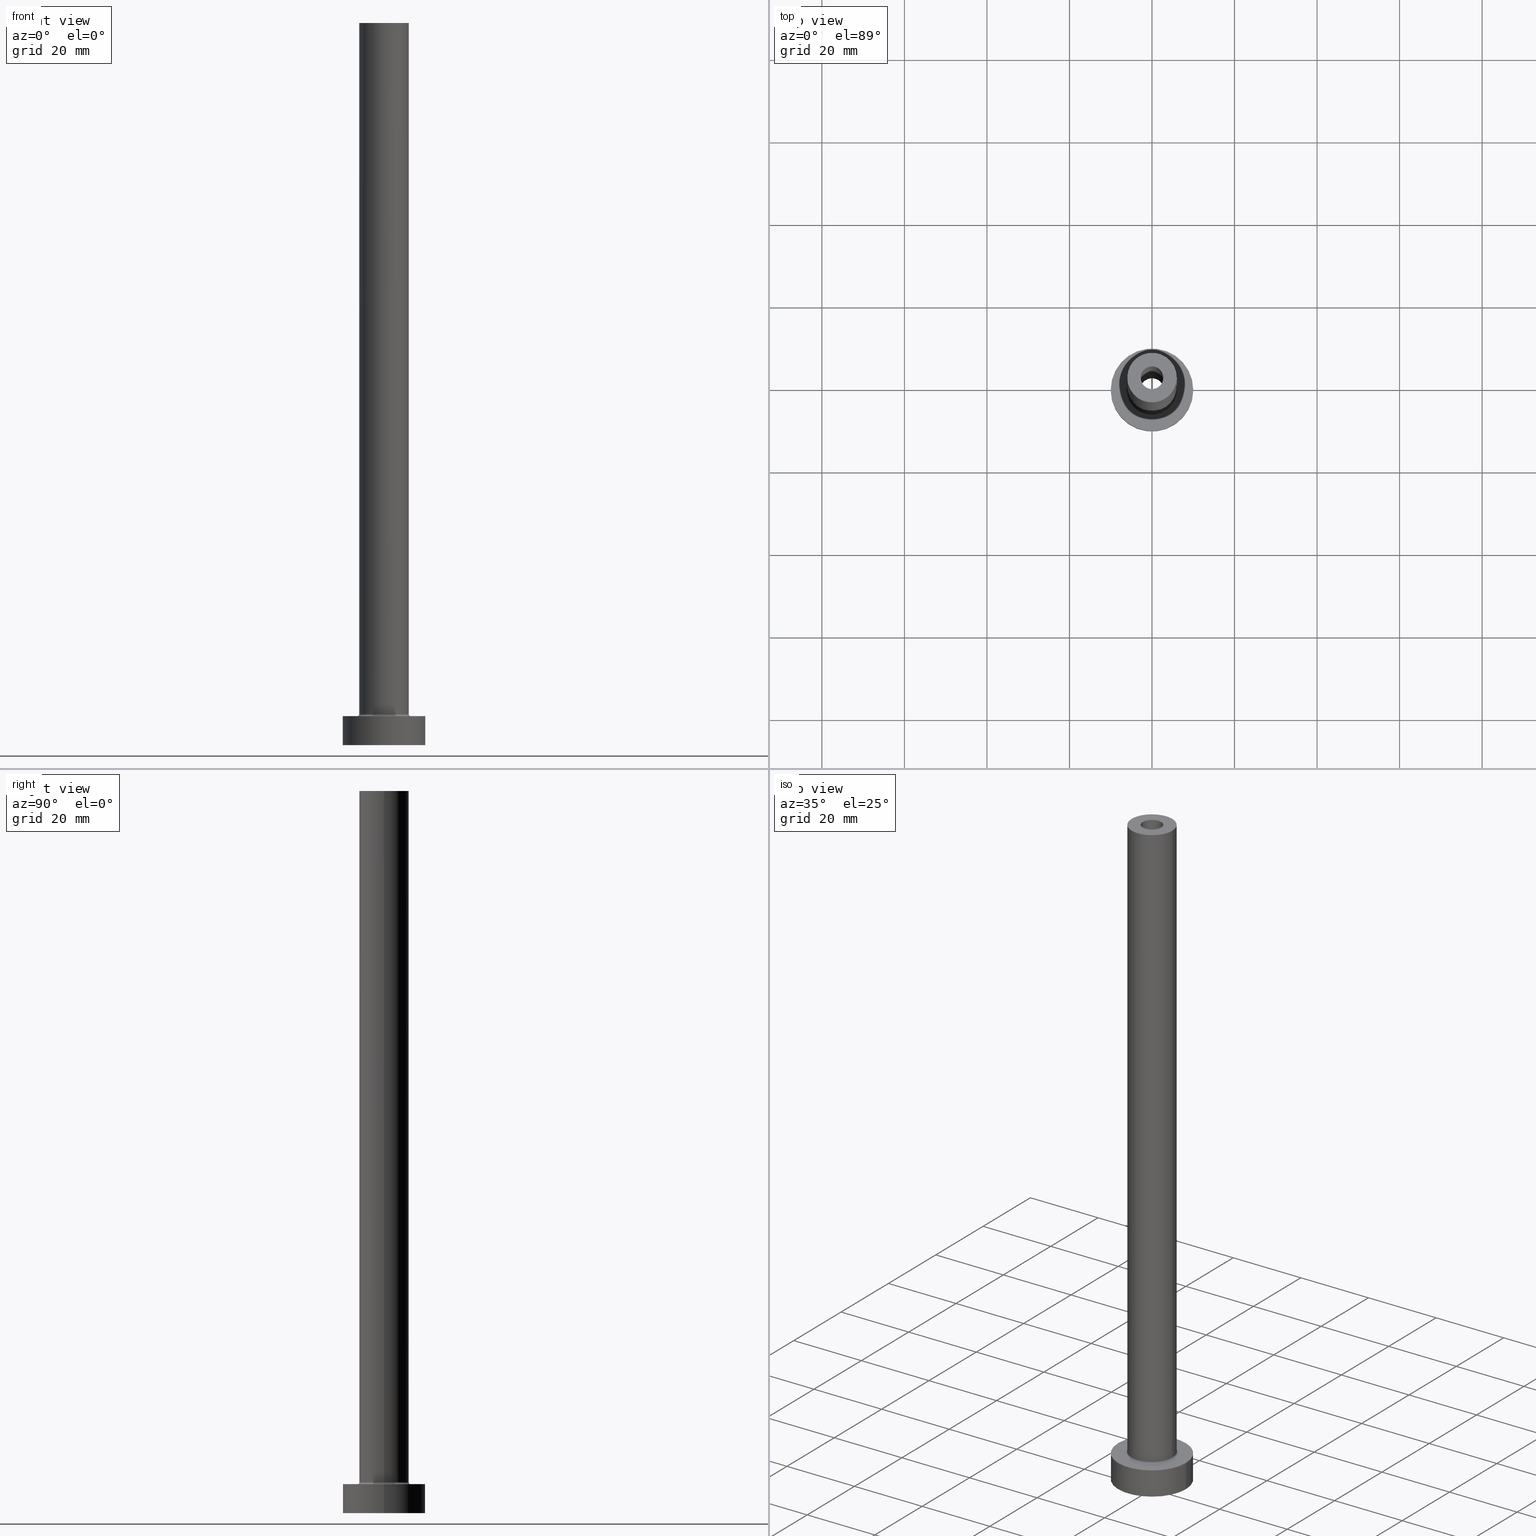
[diagram: canonical four-view strip — front | top / right | iso, engineering-drawing reading convention]
A machine part, canonical four-view strip (front | top / right | iso — engineering-drawing reading convention). The complete STEP part file that produces these views, byte-faithful:
ISO-10303-21;
HEADER;
FILE_DESCRIPTION (( 'STEP AP203' ),
    '1' );
FILE_NAME ('150e.STEP',
    '2023-02-13T15:55:40',
    ( '' ),
    ( '' ),
    'SwSTEP 2.0',
    'SolidWorks 2019',
    '' );
FILE_SCHEMA (( 'CONFIG_CONTROL_DESIGN' ));
ENDSEC;

DATA;
#1 = DIRECTION ( 'NONE',  ( 0.000000000000000000, 0.000000000000000000, 1.000000000000000000 ) ) ;
#2 = DIRECTION ( 'NONE',  ( 1.000000000000000000, 0.000000000000000000, 0.000000000000000000 ) ) ;
#3 = PERSON_AND_ORGANIZATION_ROLE ( 'design_supplier' ) ;
#4 = CARTESIAN_POINT ( 'NONE',  ( 0.000000000000000000, 0.000000000000000000, 175.0000000000000284 ) ) ;
#5 = FACE_OUTER_BOUND ( 'NONE', #341, .T. ) ;
#6 = VECTOR ( 'NONE', #275, 1000.000000000000000 ) ;
#7 = VERTEX_POINT ( 'NONE', #293 ) ;
#8 = CYLINDRICAL_SURFACE ( 'NONE', #185, 6.000000000000000888 ) ;
#9 = ORIENTED_EDGE ( 'NONE', *, *, #28, .T. ) ;
#10 = ORIENTED_EDGE ( 'NONE', *, *, #254, .T. ) ;
#11 = DIRECTION ( 'NONE',  ( 1.000000000000000000, 0.000000000000000000, -0.000000000000000000 ) ) ;
#12 = EDGE_LOOP ( 'NONE', ( #15, #374 ) ) ;
#13 = EDGE_CURVE ( 'NONE', #239, #91, #38, .T. ) ;
#14 = LOCAL_TIME ( 16, 55, 40.00000000000000000, #430 ) ;
#15 = ORIENTED_EDGE ( 'NONE', *, *, #211, .F. ) ;
#16 = APPROVAL_DATE_TIME ( #55, #24 ) ;
#17 = CARTESIAN_POINT ( 'NONE',  ( 10.00000000000000000, 1.224646799147353256E-15, 7.000000000000000000 ) ) ;
#18 = FACE_OUTER_BOUND ( 'NONE', #206, .T. ) ;
#19 = VERTEX_POINT ( 'NONE', #248 ) ;
#20 = APPROVAL ( #427, 'NEUR�EN�' ) ;
#21 = AXIS2_PLACEMENT_3D ( 'NONE', #319, #432, #2 ) ;
#22 = AXIS2_PLACEMENT_3D ( 'NONE', #318, #422, #83 ) ;
#23 = DIRECTION ( 'NONE',  ( 0.000000000000000000, 0.000000000000000000, 1.000000000000000000 ) ) ;
#24 = APPROVAL ( #198, 'NEUR�EN�' ) ;
#25 = ORIENTED_EDGE ( 'NONE', *, *, #115, .T. ) ;
#26 = CARTESIAN_POINT ( 'NONE',  ( 0.000000000000000000, 0.000000000000000000, 7.500000000000007105 ) ) ;
#27 = EDGE_LOOP ( 'NONE', ( #455, #100, #167, #65 ) ) ;
#28 = EDGE_CURVE ( 'NONE', #144, #19, #344, .T. ) ;
#29 = LINE ( 'NONE', #309, #409 ) ;
#30 =( NAMED_UNIT ( * ) PLANE_ANGLE_UNIT ( ) SI_UNIT ( $, .RADIAN. ) );
#31 = DIRECTION ( 'NONE',  ( -0.000000000000000000, -0.000000000000000000, -1.000000000000000000 ) ) ;
#32 = EDGE_CURVE ( 'NONE', #364, #7, #457, .T. ) ;
#33 = PERSON_AND_ORGANIZATION ( #365, #125 ) ;
#34 = EDGE_CURVE ( 'NONE', #438, #400, #429, .T. ) ;
#35 = CARTESIAN_POINT ( 'NONE',  ( 6.500000000000000888, 0.000000000000000000, 7.000000000000002665 ) ) ;
#36 = ORIENTED_EDGE ( 'NONE', *, *, #333, .F. ) ;
#37 = DATE_AND_TIME ( #356, #423 ) ;
#38 = CIRCLE ( 'NONE', #21, 2.899999999999999911 ) ;
#39 = TOROIDAL_SURFACE ( 'NONE', #164, 6.500000000000000888, 0.5000000000000000000 ) ;
#40 = DIRECTION ( 'NONE',  ( 0.000000000000000000, 0.000000000000000000, -1.000000000000000000 ) ) ;
#41 = CARTESIAN_POINT ( 'NONE',  ( 0.000000000000000000, 0.000000000000000000, 0.000000000000000000 ) ) ;
#42 = CC_DESIGN_PERSON_AND_ORGANIZATION_ASSIGNMENT ( #33, #189, ( #393 ) ) ;
#43 = DIRECTION ( 'NONE',  ( 0.000000000000000000, 0.000000000000000000, 1.000000000000000000 ) ) ;
#44 = APPROVAL_ROLE ( '' ) ;
#45 = CARTESIAN_POINT ( 'NONE',  ( -2.750000000000000000, 0.000000000000000000, 175.0000000000000284 ) ) ;
#46 = ORIENTED_EDGE ( 'NONE', *, *, #53, .F. ) ;
#47 = UNCERTAINTY_MEASURE_WITH_UNIT (LENGTH_MEASURE( 1.000000000000000082E-05 ), #361, 'distance_accuracy_value', 'NONE');
#48 = AXIS2_PLACEMENT_3D ( 'NONE', #151, #71, #434 ) ;
#49 = EDGE_LOOP ( 'NONE', ( #389, #231, #96, #316 ) ) ;
#50 = ORIENTED_EDGE ( 'NONE', *, *, #32, .T. ) ;
#51 = EDGE_CURVE ( 'NONE', #239, #364, #29, .T. ) ;
#52 = DIRECTION ( 'NONE',  ( -1.000000000000000000, 0.000000000000000000, 0.000000000000000000 ) ) ;
#53 = EDGE_CURVE ( 'NONE', #400, #165, #214, .T. ) ;
#54 = EDGE_LOOP ( 'NONE', ( #415, #201 ) ) ;
#55 = DATE_AND_TIME ( #369, #137 ) ;
#56 = CARTESIAN_POINT ( 'NONE',  ( 0.000000000000000000, 0.000000000000000000, 175.0000000000000284 ) ) ;
#57 = AXIS2_PLACEMENT_3D ( 'NONE', #371, #204, #66 ) ;
#58 = DIRECTION ( 'NONE',  ( -1.000000000000000000, 0.000000000000000000, 0.000000000000000000 ) ) ;
#59 = ORIENTED_EDGE ( 'NONE', *, *, #426, .F. ) ;
#60 = AXIS2_PLACEMENT_3D ( 'NONE', #460, #72, #145 ) ;
#61 = CIRCLE ( 'NONE', #136, 2.899999999999999911 ) ;
#62 = CIRCLE ( 'NONE', #285, 6.500000000000000888 ) ;
#63 = CARTESIAN_POINT ( 'NONE',  ( -6.000000000000000888, 0.000000000000000000, 7.500000000000007105 ) ) ;
#64 = CARTESIAN_POINT ( 'NONE',  ( 0.000000000000000000, 0.000000000000000000, 138.2024386617639493 ) ) ;
#65 = ORIENTED_EDGE ( 'NONE', *, *, #211, .T. ) ;
#66 = DIRECTION ( 'NONE',  ( -1.000000000000000000, 0.000000000000000000, 0.000000000000000000 ) ) ;
#67 = DIRECTION ( 'NONE',  ( 1.000000000000000000, 0.000000000000000000, 0.000000000000000000 ) ) ;
#68 = AXIS2_PLACEMENT_3D ( 'NONE', #64, #449, #58 ) ;
#69 = DATE_AND_TIME ( #252, #14 ) ;
#70 = DATE_AND_TIME ( #76, #205 ) ;
#71 = DIRECTION ( 'NONE',  ( 1.224646799147353207E-16, 1.000000000000000000, -0.000000000000000000 ) ) ;
#72 = DIRECTION ( 'NONE',  ( 0.000000000000000000, 0.000000000000000000, 1.000000000000000000 ) ) ;
#73 = COORDINATED_UNIVERSAL_TIME_OFFSET ( 1, 0, .AHEAD. ) ;
#74 = DIRECTION ( 'NONE',  ( 1.000000000000000000, 0.000000000000000000, 0.000000000000000000 ) ) ;
#75 = ORIENTED_EDGE ( 'NONE', *, *, #348, .T. ) ;
#76 = CALENDAR_DATE ( 2023, 13, 2 ) ;
#77 = VECTOR ( 'NONE', #180, 1000.000000000000000 ) ;
#78 = AXIS2_PLACEMENT_3D ( 'NONE', #262, #40, #265 ) ;
#79 = PLANE ( 'NONE',  #345 ) ;
#80 = CC_DESIGN_SECURITY_CLASSIFICATION ( #410, ( #393 ) ) ;
#81 = MANIFOLD_SOLID_BREP ( 'Odebrat vysunut�m4', #401 ) ;
#82 = SECURITY_CLASSIFICATION_LEVEL ( 'unclassified' ) ;
#83 = DIRECTION ( 'NONE',  ( -1.000000000000000000, 0.000000000000000000, 0.000000000000000000 ) ) ;
#84 = DIRECTION ( 'NONE',  ( 0.000000000000000000, 0.000000000000000000, 1.000000000000000000 ) ) ;
#85 = CYLINDRICAL_SURFACE ( 'NONE', #78, 2.899999999999999911 ) ;
#86 = ORIENTED_EDGE ( 'NONE', *, *, #92, .T. ) ;
#87 = TOROIDAL_SURFACE ( 'NONE', #251, 6.500000000000000888, 0.5000000000000000000 ) ;
#88 = APPROVAL ( #153, 'NEUR�EN�' ) ;
#89 = EDGE_LOOP ( 'NONE', ( #210, #197 ) ) ;
#90 = EDGE_CURVE ( 'NONE', #144, #228, #421, .T. ) ;
#91 = VERTEX_POINT ( 'NONE', #352 ) ;
#92 = EDGE_CURVE ( 'NONE', #336, #194, #326, .T. ) ;
#93 = FACE_OUTER_BOUND ( 'NONE', #49, .T. ) ;
#94 = CARTESIAN_POINT ( 'NONE',  ( 0.000000000000000000, 0.000000000000000000, 7.500000000000007105 ) ) ;
#95 = CIRCLE ( 'NONE', #314, 6.000000000000000888 ) ;
#96 = ORIENTED_EDGE ( 'NONE', *, *, #461, .F. ) ;
#97 = LOCAL_TIME ( 16, 55, 40.00000000000000000, #224 ) ;
#98 = CARTESIAN_POINT ( 'NONE',  ( 10.00000000000000000, 1.224646799147353256E-15, 7.000000000000000000 ) ) ;
#99 = ORIENTED_EDGE ( 'NONE', *, *, #103, .T. ) ;
#100 = ORIENTED_EDGE ( 'NONE', *, *, #13, .T. ) ;
#101 = LINE ( 'NONE', #98, #447 ) ;
#102 = CIRCLE ( 'NONE', #451, 10.00000000000000000 ) ;
#103 = EDGE_CURVE ( 'NONE', #438, #233, #184, .T. ) ;
#104 = FACE_BOUND ( 'NONE', #54, .T. ) ;
#105 = FACE_OUTER_BOUND ( 'NONE', #347, .T. ) ;
#106 = EDGE_CURVE ( 'NONE', #228, #176, #95, .T. ) ;
#107 = MECHANICAL_CONTEXT ( 'NONE', #166, 'mechanical' ) ;
#108 = EDGE_CURVE ( 'NONE', #91, #7, #376, .T. ) ;
#109 = AXIS2_PLACEMENT_3D ( 'NONE', #41, #291, #394 ) ;
#110 = PERSON_AND_ORGANIZATION ( #365, #125 ) ;
#111 = PLANE ( 'NONE',  #229 ) ;
#112 = CYLINDRICAL_SURFACE ( 'NONE', #382, 6.000000000000000888 ) ;
#113 = FACE_BOUND ( 'NONE', #187, .T. ) ;
#114 = EDGE_LOOP ( 'NONE', ( #59, #199, #123, #86 ) ) ;
#115 = EDGE_CURVE ( 'NONE', #91, #239, #61, .T. ) ;
#116 = PERSON_AND_ORGANIZATION ( #365, #125 ) ;
#117 = AXIS2_PLACEMENT_3D ( 'NONE', #240, #303, #363 ) ;
#118 = VECTOR ( 'NONE', #31, 1000.000000000000000 ) ;
#119 = CARTESIAN_POINT ( 'NONE',  ( 0.000000000000000000, 0.000000000000000000, 7.000000000000000000 ) ) ;
#120 = DIRECTION ( 'NONE',  ( 1.000000000000000000, 0.000000000000000000, 0.000000000000000000 ) ) ;
#121 = CARTESIAN_POINT ( 'NONE',  ( -10.00000000000000000, 0.000000000000000000, 7.000000000000000000 ) ) ;
#122 = EDGE_LOOP ( 'NONE', ( #334, #174, #10, #75 ) ) ;
#123 = ORIENTED_EDGE ( 'NONE', *, *, #246, .T. ) ;
#124 = DIRECTION ( 'NONE',  ( 1.000000000000000000, 0.000000000000000000, 0.000000000000000000 ) ) ;
#125 = ORGANIZATION ( 'NEUR�EN�', 'NEUR�EN�', '' ) ;
#126 = AXIS2_PLACEMENT_3D ( 'NONE', #249, #453, #182 ) ;
#127 = CC_DESIGN_APPROVAL ( #24, ( #410 ) ) ;
#128 = CARTESIAN_POINT ( 'NONE',  ( 6.000000000000000888, 7.347880794884119736E-16, 175.0000000000000284 ) ) ;
#129 = CARTESIAN_POINT ( 'NONE',  ( 2.899999999999999911, 3.551475717527323832E-16, 0.000000000000000000 ) ) ;
#130 = EDGE_CURVE ( 'NONE', #233, #165, #263, .T. ) ;
#131 = CARTESIAN_POINT ( 'NONE',  ( -2.750000000000000000, 0.000000000000000000, 130.0000000000000000 ) ) ;
#132 = CARTESIAN_POINT ( 'NONE',  ( 2.750000000000000000, 3.367778697655221012E-16, 130.0000000000000000 ) ) ;
#133 = EDGE_LOOP ( 'NONE', ( #25, #296, #50, #157 ) ) ;
#134 = DIRECTION ( 'NONE',  ( 0.000000000000000000, 0.000000000000000000, -1.000000000000000000 ) ) ;
#135 = DIRECTION ( 'NONE',  ( -0.000000000000000000, -0.000000000000000000, -1.000000000000000000 ) ) ;
#136 = AXIS2_PLACEMENT_3D ( 'NONE', #343, #23, #120 ) ;
#137 = LOCAL_TIME ( 16, 55, 40.00000000000000000, #264 ) ;
#138 = DIRECTION ( 'NONE',  ( 1.000000000000000000, 0.000000000000000000, 0.000000000000000000 ) ) ;
#139 = DIRECTION ( 'NONE',  ( 1.000000000000000000, 0.000000000000000000, 0.000000000000000000 ) ) ;
#140 = VERTEX_POINT ( 'NONE', #17 ) ;
#141 = EDGE_CURVE ( 'NONE', #194, #336, #439, .T. ) ;
#142 = CIRCLE ( 'NONE', #203, 0.5000000000000004441 ) ;
#143 = CIRCLE ( 'NONE', #126, 2.750000000000000000 ) ;
#144 = VERTEX_POINT ( 'NONE', #128 ) ;
#145 = DIRECTION ( 'NONE',  ( 1.000000000000000000, 0.000000000000000000, 0.000000000000000000 ) ) ;
#146 = CARTESIAN_POINT ( 'NONE',  ( 2.899999999999999911, 3.551475717527323832E-16, 130.0000000000000000 ) ) ;
#147 = VECTOR ( 'NONE', #383, 1000.000000000000000 ) ;
#148 = PERSON_AND_ORGANIZATION_ROLE ( 'creator' ) ;
#149 = DIRECTION ( 'NONE',  ( 1.000000000000000000, 0.000000000000000000, 0.000000000000000000 ) ) ;
#150 = PERSON_AND_ORGANIZATION ( #365, #125 ) ;
#151 = CARTESIAN_POINT ( 'NONE',  ( -6.500000000000000888, 7.960204194457796463E-16, 7.500000000000007105 ) ) ;
#152 = EDGE_CURVE ( 'NONE', #19, #144, #195, .T. ) ;
#153 = APPROVAL_STATUS ( 'not_yet_approved' ) ;
#154 = CARTESIAN_POINT ( 'NONE',  ( 6.000000000000000888, 7.347880794884119736E-16, 7.500000000000007105 ) ) ;
#155 = PERSON_AND_ORGANIZATION_ROLE ( 'design_owner' ) ;
#156 = AXIS2_PLACEMENT_3D ( 'NONE', #397, #388, #74 ) ;
#157 = ORIENTED_EDGE ( 'NONE', *, *, #108, .F. ) ;
#158 = CC_DESIGN_PERSON_AND_ORGANIZATION_ASSIGNMENT ( #320, #3, ( #393 ) ) ;
#159 = PLANE ( 'NONE',  #358 ) ;
#160 = ORIENTED_EDGE ( 'NONE', *, *, #254, .F. ) ;
#161 = CARTESIAN_POINT ( 'NONE',  ( -10.00000000000000000, 0.000000000000000000, 7.000000000000000000 ) ) ;
#162 = ORIENTED_EDGE ( 'NONE', *, *, #90, .T. ) ;
#163 = FACE_BOUND ( 'NONE', #12, .T. ) ;
#164 = AXIS2_PLACEMENT_3D ( 'NONE', #26, #177, #281 ) ;
#165 = VERTEX_POINT ( 'NONE', #131 ) ;
#166 = APPLICATION_CONTEXT ( 'configuration controlled 3d designs of mechanical parts and assemblies' ) ;
#167 = ORIENTED_EDGE ( 'NONE', *, *, #108, .T. ) ;
#168 = DIRECTION ( 'NONE',  ( 1.000000000000000000, 0.000000000000000000, 0.000000000000000000 ) ) ;
#169 = FACE_OUTER_BOUND ( 'NONE', #122, .T. ) ;
#170 = EDGE_LOOP ( 'NONE', ( #274, #241, #223, #442 ) ) ;
#171 = VECTOR ( 'NONE', #386, 1000.000000000000000 ) ;
#172 = EDGE_CURVE ( 'NONE', #228, #322, #142, .T. ) ;
#173 = FACE_OUTER_BOUND ( 'NONE', #133, .T. ) ;
#174 = ORIENTED_EDGE ( 'NONE', *, *, #152, .F. ) ;
#175 = CARTESIAN_POINT ( 'NONE',  ( 0.000000000000000000, 0.000000000000000000, 175.0000000000000284 ) ) ;
#176 = VERTEX_POINT ( 'NONE', #63 ) ;
#177 = DIRECTION ( 'NONE',  ( 0.000000000000000000, 0.000000000000000000, 1.000000000000000000 ) ) ;
#178 = ADVANCED_FACE ( 'NONE', ( #346 ), #354, .F. ) ;
#179 = CIRCLE ( 'NONE', #48, 0.5000000000000004441 ) ;
#180 = DIRECTION ( 'NONE',  ( 0.000000000000000000, 0.000000000000000000, -1.000000000000000000 ) ) ;
#181 = CYLINDRICAL_SURFACE ( 'NONE', #220, 10.00000000000000000 ) ;
#182 = DIRECTION ( 'NONE',  ( 1.000000000000000000, 0.000000000000000000, 0.000000000000000000 ) ) ;
#183 = DIRECTION ( 'NONE',  ( 1.000000000000000000, 0.000000000000000000, 0.000000000000000000 ) ) ;
#184 = CIRCLE ( 'NONE', #117, 2.750000000000000000 ) ;
#185 = AXIS2_PLACEMENT_3D ( 'NONE', #444, #406, #52 ) ;
#186 = LINE ( 'NONE', #321, #118 ) ;
#187 = EDGE_LOOP ( 'NONE', ( #271, #267 ) ) ;
#188 = ADVANCED_FACE ( 'NONE', ( #311 ), #112, .T. ) ;
#189 = PERSON_AND_ORGANIZATION_ROLE ( 'creator' ) ;
#190 = DIRECTION ( 'NONE',  ( 1.000000000000000000, 0.000000000000000000, -0.000000000000000000 ) ) ;
#191 = PERSON_AND_ORGANIZATION ( #365, #125 ) ;
#192 = DIRECTION ( 'NONE',  ( -1.000000000000000000, 0.000000000000000000, 0.000000000000000000 ) ) ;
#193 = DIRECTION ( 'NONE',  ( 0.000000000000000000, 0.000000000000000000, -1.000000000000000000 ) ) ;
#194 = VERTEX_POINT ( 'NONE', #287 ) ;
#195 = CIRCLE ( 'NONE', #243, 6.000000000000000888 ) ;
#196 = CIRCLE ( 'NONE', #209, 10.00000000000000000 ) ;
#197 = ORIENTED_EDGE ( 'NONE', *, *, #103, .F. ) ;
#198 = APPROVAL_STATUS ( 'not_yet_approved' ) ;
#199 = ORIENTED_EDGE ( 'NONE', *, *, #404, .F. ) ;
#200 = DIRECTION ( 'NONE',  ( 1.000000000000000000, 0.000000000000000000, 0.000000000000000000 ) ) ;
#201 = ORIENTED_EDGE ( 'NONE', *, *, #333, .T. ) ;
#202 = DIRECTION ( 'NONE',  ( 0.000000000000000000, 0.000000000000000000, 1.000000000000000000 ) ) ;
#203 = AXIS2_PLACEMENT_3D ( 'NONE', #236, #305, #134 ) ;
#204 = DIRECTION ( 'NONE',  ( 0.000000000000000000, 0.000000000000000000, -1.000000000000000000 ) ) ;
#205 = LOCAL_TIME ( 16, 55, 40.00000000000000000, #390 ) ;
#206 = EDGE_LOOP ( 'NONE', ( #273, #378, #342, #330 ) ) ;
#207 = CARTESIAN_POINT ( 'NONE',  ( -2.899999999999999911, 0.000000000000000000, 138.2024386617639493 ) ) ;
#208 = ADVANCED_FACE ( 'NONE', ( #256 ), #85, .F. ) ;
#209 = AXIS2_PLACEMENT_3D ( 'NONE', #253, #1, #183 ) ;
#210 = ORIENTED_EDGE ( 'NONE', *, *, #436, .F. ) ;
#211 = EDGE_CURVE ( 'NONE', #7, #364, #244, .T. ) ;
#212 = APPLICATION_CONTEXT ( 'configuration controlled 3d designs of mechanical parts and assemblies' ) ;
#213 = DIRECTION ( 'NONE',  ( -0.000000000000000000, -0.000000000000000000, -1.000000000000000000 ) ) ;
#214 = CIRCLE ( 'NONE', #60, 2.750000000000000000 ) ;
#215 = CC_DESIGN_APPROVAL ( #88, ( #317 ) ) ;
#216 = APPROVAL_DATE_TIME ( #37, #88 ) ;
#217 = FACE_BOUND ( 'NONE', #89, .T. ) ;
#218 = DIRECTION ( 'NONE',  ( 0.000000000000000000, 0.000000000000000000, 1.000000000000000000 ) ) ;
#219 = DIRECTION ( 'NONE',  ( 1.000000000000000000, 0.000000000000000000, -0.000000000000000000 ) ) ;
#220 = AXIS2_PLACEMENT_3D ( 'NONE', #119, #313, #295 ) ;
#221 = APPROVAL_DATE_TIME ( #70, #20 ) ;
#222 = CARTESIAN_POINT ( 'NONE',  ( 0.000000000000000000, 0.000000000000000000, 130.0000000000000000 ) ) ;
#223 = ORIENTED_EDGE ( 'NONE', *, *, #141, .T. ) ;
#224 = COORDINATED_UNIVERSAL_TIME_OFFSET ( 1, 0, .AHEAD. ) ;
#225 = CC_DESIGN_DATE_AND_TIME_ASSIGNMENT ( #437, #367, ( #410 ) ) ;
#226 = DIRECTION ( 'NONE',  ( -0.000000000000000000, -0.000000000000000000, -1.000000000000000000 ) ) ;
#227 = DIRECTION ( 'NONE',  ( 1.000000000000000000, 0.000000000000000000, 0.000000000000000000 ) ) ;
#228 = VERTEX_POINT ( 'NONE', #154 ) ;
#229 = AXIS2_PLACEMENT_3D ( 'NONE', #4, #391, #219 ) ;
#230 = CARTESIAN_POINT ( 'NONE',  ( 0.000000000000000000, 0.000000000000000000, 7.500000000000007105 ) ) ;
#231 = ORIENTED_EDGE ( 'NONE', *, *, #34, .T. ) ;
#232 = DIRECTION ( 'NONE',  ( 0.000000000000000000, 0.000000000000000000, 1.000000000000000000 ) ) ;
#233 = VERTEX_POINT ( 'NONE', #424 ) ;
#234 = CYLINDRICAL_SURFACE ( 'NONE', #57, 2.750000000000000000 ) ;
#235 = EDGE_LOOP ( 'NONE', ( #452, #162, #301, #160 ) ) ;
#236 = CARTESIAN_POINT ( 'NONE',  ( 6.500000000000000888, 0.000000000000000000, 7.500000000000007105 ) ) ;
#237 = AXIS2_PLACEMENT_3D ( 'NONE', #290, #387, #67 ) ;
#238 = CIRCLE ( 'NONE', #299, 6.000000000000000888 ) ;
#239 = VERTEX_POINT ( 'NONE', #146 ) ;
#240 = CARTESIAN_POINT ( 'NONE',  ( 0.000000000000000000, 0.000000000000000000, 175.0000000000000284 ) ) ;
#241 = ORIENTED_EDGE ( 'NONE', *, *, #426, .T. ) ;
#242 = PRODUCT ( '150e', '150e', '', ( #107 ) ) ;
#243 = AXIS2_PLACEMENT_3D ( 'NONE', #56, #202, #443 ) ;
#244 = CIRCLE ( 'NONE', #156, 2.899999999999999911 ) ;
#245 = ORIENTED_EDGE ( 'NONE', *, *, #152, .T. ) ;
#246 = EDGE_CURVE ( 'NONE', #372, #336, #351, .T. ) ;
#247 = ADVANCED_FACE ( 'NONE', ( #217, #5 ), #111, .T. ) ;
#248 = CARTESIAN_POINT ( 'NONE',  ( -6.000000000000000888, 0.000000000000000000, 175.0000000000000284 ) ) ;
#249 = CARTESIAN_POINT ( 'NONE',  ( 0.000000000000000000, 0.000000000000000000, 130.0000000000000000 ) ) ;
#250 = CARTESIAN_POINT ( 'NONE',  ( 6.000000000000000888, 7.347880794884119736E-16, 175.0000000000000284 ) ) ;
#251 = AXIS2_PLACEMENT_3D ( 'NONE', #402, #232, #200 ) ;
#252 = CALENDAR_DATE ( 2023, 13, 2 ) ;
#253 = CARTESIAN_POINT ( 'NONE',  ( 0.000000000000000000, 0.000000000000000000, 7.000000000000000000 ) ) ;
#254 = EDGE_CURVE ( 'NONE', #19, #176, #186, .T. ) ;
#255 = ORIENTED_EDGE ( 'NONE', *, *, #172, .T. ) ;
#256 = FACE_OUTER_BOUND ( 'NONE', #27, .T. ) ;
#257 = ADVANCED_FACE ( 'NONE', ( #431 ), #181, .T. ) ;
#258 = FACE_OUTER_BOUND ( 'NONE', #399, .T. ) ;
#259 = CARTESIAN_POINT ( 'NONE',  ( 0.000000000000000000, 0.000000000000000000, 0.000000000000000000 ) ) ;
#260 = AXIS2_PLACEMENT_3D ( 'NONE', #428, #283, #454 ) ;
#261 = ADVANCED_FACE ( 'NONE', ( #395 ), #357, .T. ) ;
#262 = CARTESIAN_POINT ( 'NONE',  ( 0.000000000000000000, 0.000000000000000000, 138.2024386617639493 ) ) ;
#263 = LINE ( 'NONE', #45, #380 ) ;
#264 = COORDINATED_UNIVERSAL_TIME_OFFSET ( 1, 0, .AHEAD. ) ;
#265 = DIRECTION ( 'NONE',  ( -1.000000000000000000, 0.000000000000000000, 0.000000000000000000 ) ) ;
#266 = ORIENTED_EDGE ( 'NONE', *, *, #331, .T. ) ;
#267 = ORIENTED_EDGE ( 'NONE', *, *, #53, .T. ) ;
#268 = APPROVAL_ROLE ( '' ) ;
#269 = AXIS2_PLACEMENT_3D ( 'NONE', #175, #307, #139 ) ;
#270 = FACE_OUTER_BOUND ( 'NONE', #325, .T. ) ;
#271 = ORIENTED_EDGE ( 'NONE', *, *, #461, .T. ) ;
#272 = CARTESIAN_POINT ( 'NONE',  ( 0.000000000000000000, 0.000000000000000000, 7.000000000000000000 ) ) ;
#273 = ORIENTED_EDGE ( 'NONE', *, *, #348, .F. ) ;
#274 = ORIENTED_EDGE ( 'NONE', *, *, #331, .F. ) ;
#275 = DIRECTION ( 'NONE',  ( 0.000000000000000000, 0.000000000000000000, -1.000000000000000000 ) ) ;
#276 = DIRECTION ( 'NONE',  ( 0.000000000000000000, 0.000000000000000000, 1.000000000000000000 ) ) ;
#277 = APPROVAL_PERSON_ORGANIZATION ( #288, #88, #44 ) ;
#278 = CARTESIAN_POINT ( 'NONE',  ( 2.750000000000000000, 3.367778697655221012E-16, 175.0000000000000284 ) ) ;
#279 = AXIS2_PLACEMENT_3D ( 'NONE', #259, #213, #392 ) ;
#280 = ORIENTED_EDGE ( 'NONE', *, *, #323, .F. ) ;
#281 = DIRECTION ( 'NONE',  ( 1.000000000000000000, 0.000000000000000000, 0.000000000000000000 ) ) ;
#282 = CC_DESIGN_PERSON_AND_ORGANIZATION_ASSIGNMENT ( #150, #148, ( #317 ) ) ;
#283 = DIRECTION ( 'NONE',  ( 0.000000000000000000, 0.000000000000000000, -1.000000000000000000 ) ) ;
#284 = ORIENTED_EDGE ( 'NONE', *, *, #130, .T. ) ;
#285 = AXIS2_PLACEMENT_3D ( 'NONE', #458, #360, #149 ) ;
#286 = DIRECTION ( 'NONE',  ( 1.000000000000000000, 0.000000000000000000, -0.000000000000000000 ) ) ;
#287 = CARTESIAN_POINT ( 'NONE',  ( 10.00000000000000000, 1.224646799147353256E-15, 0.000000000000000000 ) ) ;
#288 = PERSON_AND_ORGANIZATION ( #365, #125 ) ;
#289 = CARTESIAN_POINT ( 'NONE',  ( -10.00000000000000000, 0.000000000000000000, 0.000000000000000000 ) ) ;
#290 = CARTESIAN_POINT ( 'NONE',  ( 0.000000000000000000, 0.000000000000000000, 175.0000000000000284 ) ) ;
#291 = DIRECTION ( 'NONE',  ( 0.000000000000000000, 0.000000000000000000, 1.000000000000000000 ) ) ;
#292 = CARTESIAN_POINT ( 'NONE',  ( 0.000000000000000000, 0.000000000000000000, 175.0000000000000284 ) ) ;
#293 = CARTESIAN_POINT ( 'NONE',  ( -2.899999999999999911, 0.000000000000000000, 0.000000000000000000 ) ) ;
#294 = APPROVAL_PERSON_ORGANIZATION ( #191, #20, #385 ) ;
#295 = DIRECTION ( 'NONE',  ( -1.000000000000000000, 0.000000000000000000, 0.000000000000000000 ) ) ;
#296 = ORIENTED_EDGE ( 'NONE', *, *, #51, .T. ) ;
#297 = CC_DESIGN_DATE_AND_TIME_ASSIGNMENT ( #69, #353, ( #317 ) ) ;
#298 = ORIENTED_EDGE ( 'NONE', *, *, #106, .F. ) ;
#299 = AXIS2_PLACEMENT_3D ( 'NONE', #230, #332, #124 ) ;
#300 = CARTESIAN_POINT ( 'NONE',  ( 0.000000000000000000, 0.000000000000000000, 7.000000000000000000 ) ) ;
#301 = ORIENTED_EDGE ( 'NONE', *, *, #106, .T. ) ;
#302 = SHAPE_DEFINITION_REPRESENTATION ( #407, #381 ) ;
#303 = DIRECTION ( 'NONE',  ( 0.000000000000000000, 0.000000000000000000, 1.000000000000000000 ) ) ;
#304 = VERTEX_POINT ( 'NONE', #362 ) ;
#305 = DIRECTION ( 'NONE',  ( 0.000000000000000000, -1.000000000000000000, 0.000000000000000000 ) ) ;
#306 = DIRECTION ( 'NONE',  ( 0.000000000000000000, 0.000000000000000000, 1.000000000000000000 ) ) ;
#307 = DIRECTION ( 'NONE',  ( 0.000000000000000000, 0.000000000000000000, 1.000000000000000000 ) ) ;
#308 = CC_DESIGN_APPROVAL ( #20, ( #393 ) ) ;
#309 = CARTESIAN_POINT ( 'NONE',  ( 2.899999999999999911, 3.551475717527323832E-16, 138.2024386617639493 ) ) ;
#310 = APPLICATION_PROTOCOL_DEFINITION ( 'international standard', 'config_control_design', 1994, #212 ) ;
#311 = FACE_OUTER_BOUND ( 'NONE', #235, .T. ) ;
#312 = PLANE ( 'NONE',  #417 ) ;
#313 = DIRECTION ( 'NONE',  ( -0.000000000000000000, -0.000000000000000000, -1.000000000000000000 ) ) ;
#314 = AXIS2_PLACEMENT_3D ( 'NONE', #94, #84, #138 ) ;
#315 = AXIS2_PLACEMENT_3D ( 'NONE', #440, #405, #168 ) ;
#316 = ORIENTED_EDGE ( 'NONE', *, *, #130, .F. ) ;
#317 = PRODUCT_DEFINITION ( 'NEZN�M�', '', #393, #327 ) ;
#318 = CARTESIAN_POINT ( 'NONE',  ( 0.000000000000000000, 0.000000000000000000, 7.000000000000000000 ) ) ;
#319 = CARTESIAN_POINT ( 'NONE',  ( 0.000000000000000000, 0.000000000000000000, 130.0000000000000000 ) ) ;
#320 = PERSON_AND_ORGANIZATION ( #365, #125 ) ;
#321 = CARTESIAN_POINT ( 'NONE',  ( -6.000000000000000888, 0.000000000000000000, 175.0000000000000284 ) ) ;
#322 = VERTEX_POINT ( 'NONE', #35 ) ;
#323 = EDGE_CURVE ( 'NONE', #176, #304, #179, .T. ) ;
#324 = PERSON_AND_ORGANIZATION_ROLE ( 'classification_officer' ) ;
#325 = EDGE_LOOP ( 'NONE', ( #368, #411 ) ) ;
#326 = CIRCLE ( 'NONE', #337, 10.00000000000000000 ) ;
#327 = DESIGN_CONTEXT ( 'detailed design', #212, 'design' ) ;
#328 = APPROVAL_PERSON_ORGANIZATION ( #329, #24, #268 ) ;
#329 = PERSON_AND_ORGANIZATION ( #365, #125 ) ;
#330 = ORIENTED_EDGE ( 'NONE', *, *, #172, .F. ) ;
#331 = EDGE_CURVE ( 'NONE', #140, #372, #196, .T. ) ;
#332 = DIRECTION ( 'NONE',  ( 0.000000000000000000, 0.000000000000000000, 1.000000000000000000 ) ) ;
#333 = EDGE_CURVE ( 'NONE', #304, #322, #62, .T. ) ;
#334 = ORIENTED_EDGE ( 'NONE', *, *, #90, .F. ) ;
#335 = CARTESIAN_POINT ( 'NONE',  ( 0.000000000000000000, 0.000000000000000000, 0.000000000000000000 ) ) ;
#336 = VERTEX_POINT ( 'NONE', #289 ) ;
#337 = AXIS2_PLACEMENT_3D ( 'NONE', #425, #306, #396 ) ;
#338 = AXIS2_PLACEMENT_3D ( 'NONE', #300, #135, #441 ) ;
#339 = ADVANCED_FACE ( 'NONE', ( #113, #258 ), #79, .F. ) ;
#340 = ORIENTED_EDGE ( 'NONE', *, *, #34, .F. ) ;
#341 = EDGE_LOOP ( 'NONE', ( #245, #9 ) ) ;
#342 = ORIENTED_EDGE ( 'NONE', *, *, #414, .F. ) ;
#343 = CARTESIAN_POINT ( 'NONE',  ( 0.000000000000000000, 0.000000000000000000, 130.0000000000000000 ) ) ;
#344 = CIRCLE ( 'NONE', #237, 6.000000000000000888 ) ;
#345 = AXIS2_PLACEMENT_3D ( 'NONE', #222, #43, #190 ) ;
#346 = FACE_OUTER_BOUND ( 'NONE', #445, .T. ) ;
#347 = EDGE_LOOP ( 'NONE', ( #408, #266 ) ) ;
#348 = EDGE_CURVE ( 'NONE', #176, #228, #238, .T. ) ;
#349 = CARTESIAN_POINT ( 'NONE',  ( 2.750000000000000000, 3.367778697655221012E-16, 175.0000000000000284 ) ) ;
#350 =( NAMED_UNIT ( * ) SI_UNIT ( $, .STERADIAN. ) SOLID_ANGLE_UNIT ( ) );
#351 = LINE ( 'NONE', #121, #171 ) ;
#352 = CARTESIAN_POINT ( 'NONE',  ( -2.899999999999999911, 0.000000000000000000, 130.0000000000000000 ) ) ;
#353 = DATE_TIME_ROLE ( 'creation_date' ) ;
#354 = CYLINDRICAL_SURFACE ( 'NONE', #260, 2.750000000000000000 ) ;
#355 = DIRECTION ( 'NONE',  ( 0.000000000000000000, 0.000000000000000000, -1.000000000000000000 ) ) ;
#356 = CALENDAR_DATE ( 2023, 13, 2 ) ;
#357 = CYLINDRICAL_SURFACE ( 'NONE', #22, 10.00000000000000000 ) ;
#358 = AXIS2_PLACEMENT_3D ( 'NONE', #335, #446, #11 ) ;
#359 = CARTESIAN_POINT ( 'NONE',  ( 0.000000000000000000, 0.000000000000000000, 7.000000000000000000 ) ) ;
#360 = DIRECTION ( 'NONE',  ( -0.000000000000000000, -0.000000000000000000, -1.000000000000000000 ) ) ;
#361 =( LENGTH_UNIT ( ) NAMED_UNIT ( * ) SI_UNIT ( .MILLI., .METRE. ) );
#362 = CARTESIAN_POINT ( 'NONE',  ( -6.500000000000000888, 7.960204194457796463E-16, 7.000000000000002665 ) ) ;
#363 = DIRECTION ( 'NONE',  ( 1.000000000000000000, 0.000000000000000000, 0.000000000000000000 ) ) ;
#364 = VERTEX_POINT ( 'NONE', #129 ) ;
#365 = PERSON ( 'NEUR�EN�', 'NEUR�EN�', 'NEUR�EN�', ('NEUR�EN�'), ('NEUR�EN�'), ('NEUR�EN�') ) ;
#366 =( GEOMETRIC_REPRESENTATION_CONTEXT ( 3 ) GLOBAL_UNCERTAINTY_ASSIGNED_CONTEXT ( ( #47 ) ) GLOBAL_UNIT_ASSIGNED_CONTEXT ( ( #361, #30, #350 ) ) REPRESENTATION_CONTEXT ( 'NONE', 'WORKASPACE' ) );
#367 = DATE_TIME_ROLE ( 'classification_date' ) ;
#368 = ORIENTED_EDGE ( 'NONE', *, *, #92, .F. ) ;
#369 = CALENDAR_DATE ( 2023, 13, 2 ) ;
#370 = CC_DESIGN_PERSON_AND_ORGANIZATION_ASSIGNMENT ( #110, #155, ( #242 ) ) ;
#371 = CARTESIAN_POINT ( 'NONE',  ( 0.000000000000000000, 0.000000000000000000, 175.0000000000000284 ) ) ;
#372 = VERTEX_POINT ( 'NONE', #161 ) ;
#373 = CIRCLE ( 'NONE', #269, 2.750000000000000000 ) ;
#374 = ORIENTED_EDGE ( 'NONE', *, *, #32, .F. ) ;
#375 = ORIENTED_EDGE ( 'NONE', *, *, #115, .F. ) ;
#376 = LINE ( 'NONE', #207, #6 ) ;
#377 = CYLINDRICAL_SURFACE ( 'NONE', #68, 2.899999999999999911 ) ;
#378 = ORIENTED_EDGE ( 'NONE', *, *, #323, .T. ) ;
#379 = ADVANCED_FACE ( 'NONE', ( #18 ), #87, .F. ) ;
#380 = VECTOR ( 'NONE', #193, 1000.000000000000000 ) ;
#381 = ADVANCED_BREP_SHAPE_REPRESENTATION ( '150e', ( #81, #109 ), #366 ) ;
#382 = AXIS2_PLACEMENT_3D ( 'NONE', #292, #226, #192 ) ;
#383 = DIRECTION ( 'NONE',  ( -0.000000000000000000, -0.000000000000000000, -1.000000000000000000 ) ) ;
#384 = ADVANCED_FACE ( 'NONE', ( #169 ), #8, .T. ) ;
#385 = APPROVAL_ROLE ( '' ) ;
#386 = DIRECTION ( 'NONE',  ( -0.000000000000000000, -0.000000000000000000, -1.000000000000000000 ) ) ;
#387 = DIRECTION ( 'NONE',  ( 0.000000000000000000, 0.000000000000000000, 1.000000000000000000 ) ) ;
#388 = DIRECTION ( 'NONE',  ( -0.000000000000000000, -0.000000000000000000, -1.000000000000000000 ) ) ;
#389 = ORIENTED_EDGE ( 'NONE', *, *, #436, .T. ) ;
#390 = COORDINATED_UNIVERSAL_TIME_OFFSET ( 1, 0, .AHEAD. ) ;
#391 = DIRECTION ( 'NONE',  ( 0.000000000000000000, 0.000000000000000000, 1.000000000000000000 ) ) ;
#392 = DIRECTION ( 'NONE',  ( 1.000000000000000000, 0.000000000000000000, 0.000000000000000000 ) ) ;
#393 = PRODUCT_DEFINITION_FORMATION_WITH_SPECIFIED_SOURCE ( 'LIBOVOLN�', '', #242, .NOT_KNOWN. ) ;
#394 = DIRECTION ( 'NONE',  ( 1.000000000000000000, 0.000000000000000000, 0.000000000000000000 ) ) ;
#395 = FACE_OUTER_BOUND ( 'NONE', #170, .T. ) ;
#396 = DIRECTION ( 'NONE',  ( 1.000000000000000000, 0.000000000000000000, 0.000000000000000000 ) ) ;
#397 = CARTESIAN_POINT ( 'NONE',  ( 0.000000000000000000, 0.000000000000000000, 0.000000000000000000 ) ) ;
#398 = PRODUCT_RELATED_PRODUCT_CATEGORY ( 'detail', '', ( #242 ) ) ;
#399 = EDGE_LOOP ( 'NONE', ( #375, #435 ) ) ;
#400 = VERTEX_POINT ( 'NONE', #132 ) ;
#401 = CLOSED_SHELL ( 'NONE', ( #416, #433, #379, #188, #261, #257, #450, #412, #384, #247, #448, #208, #339, #178 ) ) ;
#402 = CARTESIAN_POINT ( 'NONE',  ( 0.000000000000000000, 0.000000000000000000, 7.500000000000007105 ) ) ;
#403 = EDGE_LOOP ( 'NONE', ( #280, #298, #255, #36 ) ) ;
#404 = EDGE_CURVE ( 'NONE', #372, #140, #102, .T. ) ;
#405 = DIRECTION ( 'NONE',  ( 0.000000000000000000, 0.000000000000000000, 1.000000000000000000 ) ) ;
#406 = DIRECTION ( 'NONE',  ( -0.000000000000000000, -0.000000000000000000, -1.000000000000000000 ) ) ;
#407 = PRODUCT_DEFINITION_SHAPE ( 'NONE', 'NONE',  #317 ) ;
#408 = ORIENTED_EDGE ( 'NONE', *, *, #404, .T. ) ;
#409 = VECTOR ( 'NONE', #355, 1000.000000000000000 ) ;
#410 = SECURITY_CLASSIFICATION ( '', '', #82 ) ;
#411 = ORIENTED_EDGE ( 'NONE', *, *, #141, .F. ) ;
#412 = ADVANCED_FACE ( 'NONE', ( #163, #270 ), #159, .F. ) ;
#413 = FACE_OUTER_BOUND ( 'NONE', #403, .T. ) ;
#414 = EDGE_CURVE ( 'NONE', #322, #304, #459, .T. ) ;
#415 = ORIENTED_EDGE ( 'NONE', *, *, #414, .T. ) ;
#416 = ADVANCED_FACE ( 'NONE', ( #93 ), #234, .F. ) ;
#417 = AXIS2_PLACEMENT_3D ( 'NONE', #359, #218, #286 ) ;
#418 = DIRECTION ( 'NONE',  ( -0.000000000000000000, -0.000000000000000000, -1.000000000000000000 ) ) ;
#419 = CC_DESIGN_PERSON_AND_ORGANIZATION_ASSIGNMENT ( #116, #324, ( #410 ) ) ;
#420 = CALENDAR_DATE ( 2023, 13, 2 ) ;
#421 = LINE ( 'NONE', #250, #147 ) ;
#422 = DIRECTION ( 'NONE',  ( -0.000000000000000000, -0.000000000000000000, -1.000000000000000000 ) ) ;
#423 = LOCAL_TIME ( 16, 55, 40.00000000000000000, #73 ) ;
#424 = CARTESIAN_POINT ( 'NONE',  ( -2.750000000000000000, 0.000000000000000000, 175.0000000000000284 ) ) ;
#425 = CARTESIAN_POINT ( 'NONE',  ( 0.000000000000000000, 0.000000000000000000, 0.000000000000000000 ) ) ;
#426 = EDGE_CURVE ( 'NONE', #140, #194, #101, .T. ) ;
#427 = APPROVAL_STATUS ( 'not_yet_approved' ) ;
#428 = CARTESIAN_POINT ( 'NONE',  ( 0.000000000000000000, 0.000000000000000000, 175.0000000000000284 ) ) ;
#429 = LINE ( 'NONE', #349, #77 ) ;
#430 = COORDINATED_UNIVERSAL_TIME_OFFSET ( 1, 0, .AHEAD. ) ;
#431 = FACE_OUTER_BOUND ( 'NONE', #114, .T. ) ;
#432 = DIRECTION ( 'NONE',  ( 0.000000000000000000, 0.000000000000000000, 1.000000000000000000 ) ) ;
#433 = ADVANCED_FACE ( 'NONE', ( #173 ), #377, .F. ) ;
#434 = DIRECTION ( 'NONE',  ( -1.000000000000000000, 1.224646799147351482E-16, 0.000000000000000000 ) ) ;
#435 = ORIENTED_EDGE ( 'NONE', *, *, #13, .F. ) ;
#436 = EDGE_CURVE ( 'NONE', #233, #438, #373, .T. ) ;
#437 = DATE_AND_TIME ( #420, #97 ) ;
#438 = VERTEX_POINT ( 'NONE', #278 ) ;
#439 = CIRCLE ( 'NONE', #315, 10.00000000000000000 ) ;
#440 = CARTESIAN_POINT ( 'NONE',  ( 0.000000000000000000, 0.000000000000000000, 0.000000000000000000 ) ) ;
#441 = DIRECTION ( 'NONE',  ( 1.000000000000000000, 0.000000000000000000, 0.000000000000000000 ) ) ;
#442 = ORIENTED_EDGE ( 'NONE', *, *, #246, .F. ) ;
#443 = DIRECTION ( 'NONE',  ( 1.000000000000000000, 0.000000000000000000, 0.000000000000000000 ) ) ;
#444 = CARTESIAN_POINT ( 'NONE',  ( 0.000000000000000000, 0.000000000000000000, 175.0000000000000284 ) ) ;
#445 = EDGE_LOOP ( 'NONE', ( #340, #99, #284, #46 ) ) ;
#446 = DIRECTION ( 'NONE',  ( 0.000000000000000000, 0.000000000000000000, 1.000000000000000000 ) ) ;
#447 = VECTOR ( 'NONE', #418, 1000.000000000000000 ) ;
#448 = ADVANCED_FACE ( 'NONE', ( #413 ), #39, .F. ) ;
#449 = DIRECTION ( 'NONE',  ( 0.000000000000000000, 0.000000000000000000, -1.000000000000000000 ) ) ;
#450 = ADVANCED_FACE ( 'NONE', ( #104, #105 ), #312, .T. ) ;
#451 = AXIS2_PLACEMENT_3D ( 'NONE', #272, #276, #227 ) ;
#452 = ORIENTED_EDGE ( 'NONE', *, *, #28, .F. ) ;
#453 = DIRECTION ( 'NONE',  ( 0.000000000000000000, 0.000000000000000000, 1.000000000000000000 ) ) ;
#454 = DIRECTION ( 'NONE',  ( -1.000000000000000000, 0.000000000000000000, 0.000000000000000000 ) ) ;
#455 = ORIENTED_EDGE ( 'NONE', *, *, #51, .F. ) ;
#456 = APPLICATION_PROTOCOL_DEFINITION ( 'international standard', 'config_control_design', 1994, #166 ) ;
#457 = CIRCLE ( 'NONE', #279, 2.899999999999999911 ) ;
#458 = CARTESIAN_POINT ( 'NONE',  ( 0.000000000000000000, 0.000000000000000000, 7.000000000000000000 ) ) ;
#459 = CIRCLE ( 'NONE', #338, 6.500000000000000888 ) ;
#460 = CARTESIAN_POINT ( 'NONE',  ( 0.000000000000000000, 0.000000000000000000, 130.0000000000000000 ) ) ;
#461 = EDGE_CURVE ( 'NONE', #165, #400, #143, .T. ) ;
ENDSEC;
END-ISO-10303-21;
